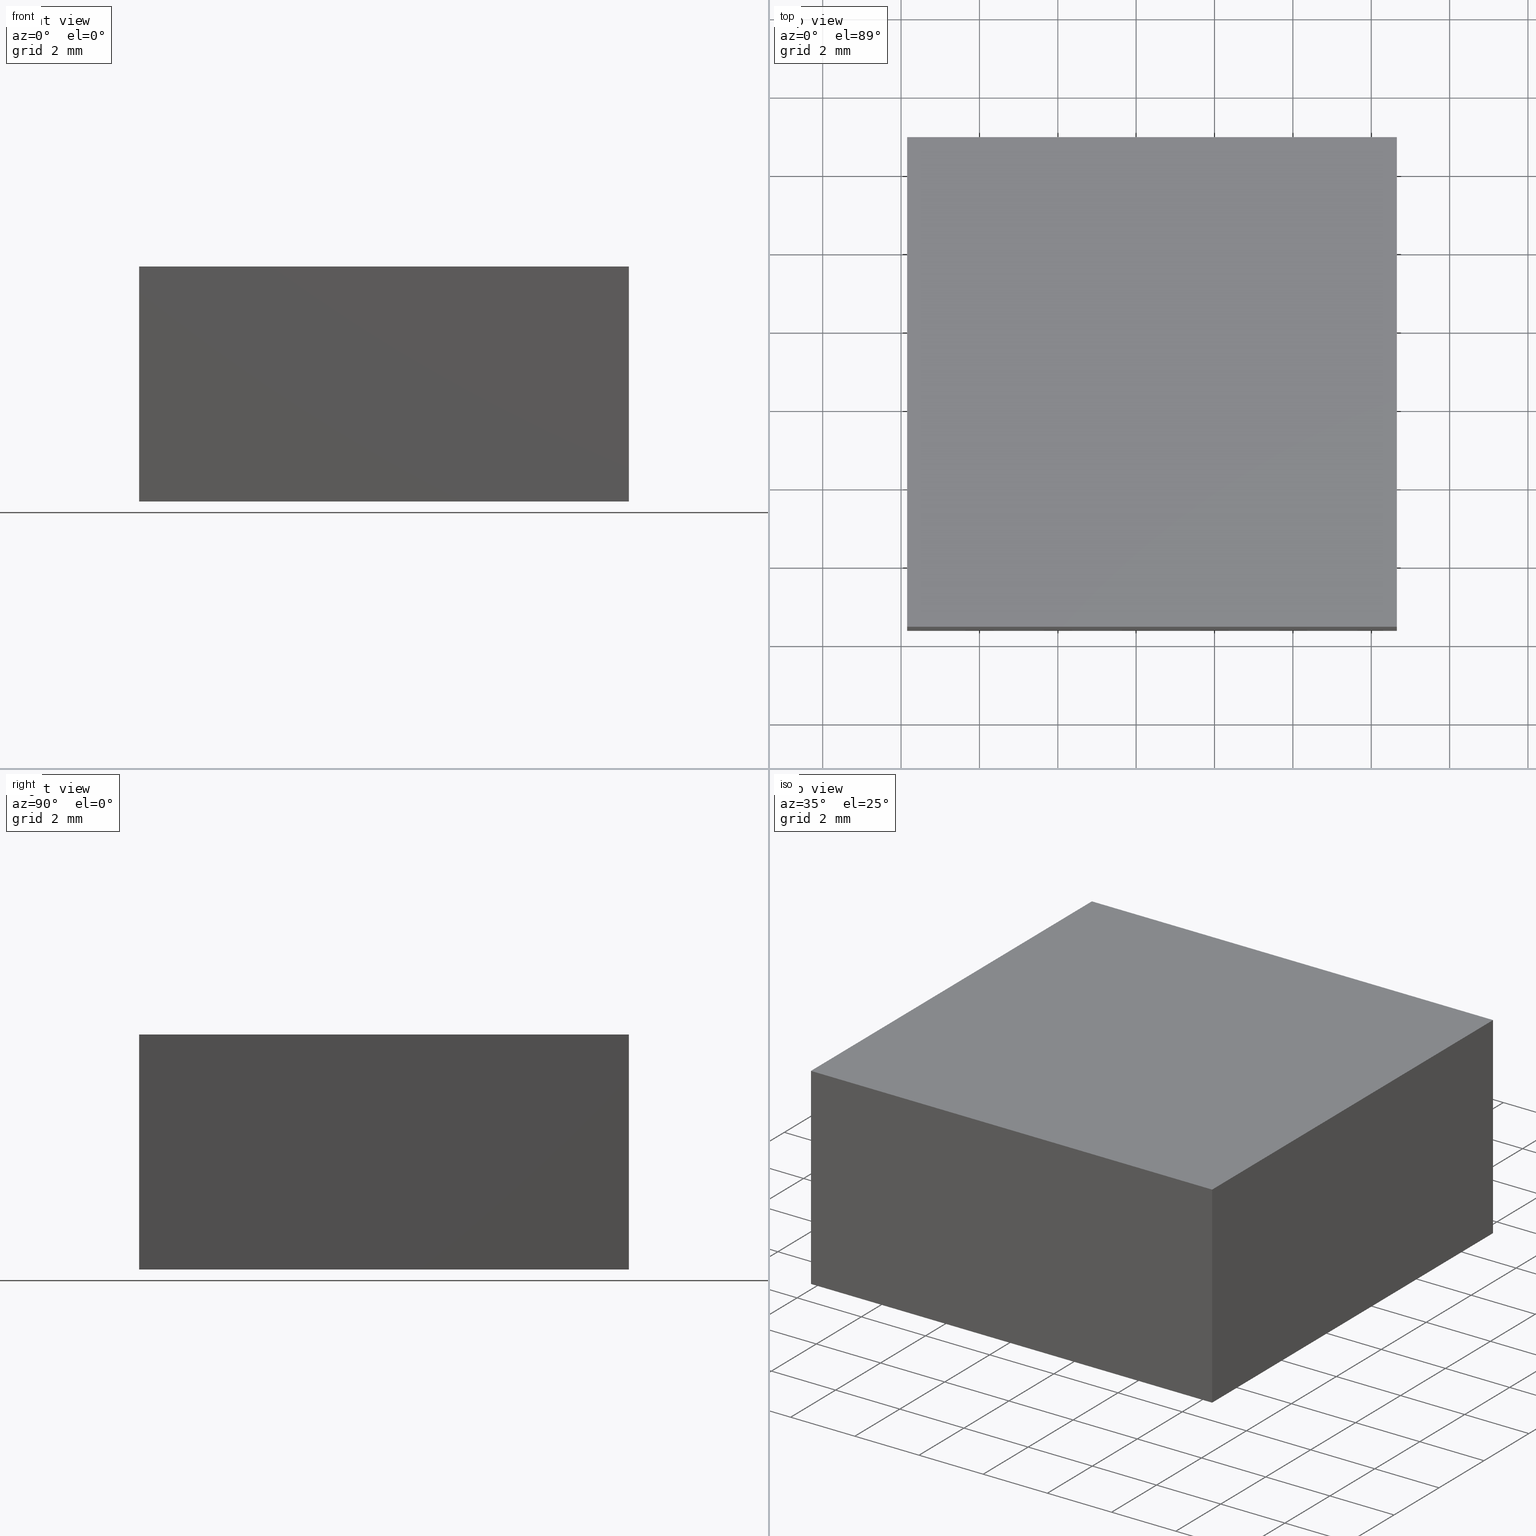
[diagram: canonical four-view strip — front | top / right | iso, engineering-drawing reading convention]
A machine part, canonical four-view strip (front | top / right | iso — engineering-drawing reading convention). The complete STEP part file that produces these views, byte-faithful:
ISO-10303-21;
HEADER;
FILE_DESCRIPTION (( 'STEP AP214' ),
    '1' );
FILE_NAME ('260069.STEP',
    '2019-07-16T03:11:53',
    ( '' ),
    ( '' ),
    'SwSTEP 2.0',
    'SolidWorks 2016',
    '' );
FILE_SCHEMA (( 'AUTOMOTIVE_DESIGN' ));
ENDSEC;

DATA;
#1 = ADVANCED_FACE ( 'NONE', ( #69 ), #163, .F. ) ;
#2 = STYLED_ITEM ( 'NONE', ( #18 ), #32 ) ;
#3 = VECTOR ( 'NONE', #9, 1000.000000000000000 ) ;
#4 = AXIS2_PLACEMENT_3D ( 'NONE', #47, #27, #95 ) ;
#5 = UNCERTAINTY_MEASURE_WITH_UNIT (LENGTH_MEASURE( 1.000000000000000100E-005 ), #183, 'distance_accuracy_value', 'NONE');
#6 = DIRECTION ( 'NONE',  ( -0.0000000000000000000, 1.000000000000000000, -0.0000000000000000000 ) ) ;
#7 = VECTOR ( 'NONE', #153, 1000.000000000000000 ) ;
#8 = ORIENTED_EDGE ( 'NONE', *, *, #63, .T. ) ;
#9 = DIRECTION ( 'NONE',  ( -0.0000000000000000000, -1.000000000000000000, -0.0000000000000000000 ) ) ;
#10 = DIRECTION ( 'NONE',  ( -0.0000000000000000000, -0.0000000000000000000, -1.000000000000000000 ) ) ;
#11 = CARTESIAN_POINT ( 'NONE',  ( 104.1543858644214700, 32.39658967450770900, 6.000000000000000000 ) ) ;
#12 = LINE ( 'NONE', #159, #88 ) ;
#13 = CARTESIAN_POINT ( 'NONE',  ( 0.0000000000000000000, 0.0000000000000000000, 0.0000000000000000000 ) ) ;
#14 = PRODUCT_DEFINITION_SHAPE ( 'NONE', 'NONE',  #192 ) ;
#15 = CARTESIAN_POINT ( 'NONE',  ( 104.1543858644214700, 38.64658967450770900, 6.000000000000000000 ) ) ;
#16 = ORIENTED_EDGE ( 'NONE', *, *, #86, .T. ) ;
#17 = PRESENTATION_LAYER_ASSIGNMENT (  '', '', ( #2 ) ) ;
#18 = PRESENTATION_STYLE_ASSIGNMENT (( #171 ) ) ;
#19 = VECTOR ( 'NONE', #194, 1000.000000000000000 ) ;
#20 = SURFACE_STYLE_FILL_AREA ( #76 ) ;
#21 = VERTEX_POINT ( 'NONE', #57 ) ;
#22 = DIRECTION ( 'NONE',  ( -0.0000000000000000000, -0.0000000000000000000, -1.000000000000000000 ) ) ;
#23 = CARTESIAN_POINT ( 'NONE',  ( 0.0000000000000000000, 0.0000000000000000000, 6.000000000000000000 ) ) ;
#24 = CARTESIAN_POINT ( 'NONE',  ( 116.6543858644214900, 44.89658967450770900, 6.000000000000000000 ) ) ;
#25 = STYLED_ITEM ( 'NONE', ( #151 ), #199 ) ;
#26 = FACE_OUTER_BOUND ( 'NONE', #99, .T. ) ;
#27 = DIRECTION ( 'NONE',  ( 0.0000000000000000000, 0.0000000000000000000, -1.000000000000000000 ) ) ;
#28 = CARTESIAN_POINT ( 'NONE',  ( 104.1543858644214700, 32.39658967450770900, 0.0000000000000000000 ) ) ;
#29 = PLANE ( 'NONE',  #4 ) ;
#30 = LINE ( 'NONE', #105, #58 ) ;
#31 = DIRECTION ( 'NONE',  ( 0.0000000000000000000, 0.0000000000000000000, 1.000000000000000000 ) ) ;
#32 = ADVANCED_BREP_SHAPE_REPRESENTATION ( '260069', ( #199, #98 ), #195 ) ;
#33 = PLANE ( 'NONE',  #91 ) ;
#34 = CLOSED_SHELL ( 'NONE', ( #1, #100, #189, #129, #82, #131 ) ) ;
#35 = AXIS2_PLACEMENT_3D ( 'NONE', #15, #111, #61 ) ;
#36 = ORIENTED_EDGE ( 'NONE', *, *, #83, .F. ) ;
#37 = EDGE_CURVE ( 'NONE', #148, #21, #81, .T. ) ;
#38 = CARTESIAN_POINT ( 'NONE',  ( 116.6543858644214900, 32.39658967450770900, 0.0000000000000000000 ) ) ;
#39 = VECTOR ( 'NONE', #22, 1000.000000000000000 ) ;
#40 = EDGE_CURVE ( 'NONE', #54, #132, #146, .T. ) ;
#41 = CARTESIAN_POINT ( 'NONE',  ( 116.6543858644214900, 32.39658967450770900, 6.000000000000000000 ) ) ;
#42 = DIRECTION ( 'NONE',  ( 0.0000000000000000000, 1.000000000000000000, -0.0000000000000000000 ) ) ;
#43 = CARTESIAN_POINT ( 'NONE',  ( 116.6543858644214900, 32.39658967450770900, 0.0000000000000000000 ) ) ;
#44 = EDGE_LOOP ( 'NONE', ( #168, #67, #116, #120 ) ) ;
#45 = SURFACE_STYLE_USAGE ( .BOTH. , #123 ) ;
#46 = APPLICATION_PROTOCOL_DEFINITION ( 'draft international standard', 'automotive_design', 1998, #141 ) ;
#47 = CARTESIAN_POINT ( 'NONE',  ( 0.0000000000000000000, 0.0000000000000000000, 0.0000000000000000000 ) ) ;
#48 = COLOUR_RGB ( '',1.000000000000000000, 1.000000000000000000, 1.000000000000000000 ) ;
#49 = ORIENTED_EDGE ( 'NONE', *, *, #83, .T. ) ;
#50 = MECHANICAL_DESIGN_GEOMETRIC_PRESENTATION_REPRESENTATION (  '', ( #2 ), #115 ) ;
#51 = EDGE_CURVE ( 'NONE', #64, #132, #144, .T. ) ;
#52 = LINE ( 'NONE', #104, #3 ) ;
#53 = LINE ( 'NONE', #196, #39 ) ;
#54 = VERTEX_POINT ( 'NONE', #89 ) ;
#55 = EDGE_LOOP ( 'NONE', ( #127, #202, #191, #173 ) ) ;
#56 = AXIS2_PLACEMENT_3D ( 'NONE', #23, #103, #107 ) ;
#57 = CARTESIAN_POINT ( 'NONE',  ( 116.6543858644214900, 44.89658967450770900, 6.000000000000000000 ) ) ;
#58 = VECTOR ( 'NONE', #119, 1000.000000000000000 ) ;
#59 = PLANE ( 'NONE',  #56 ) ;
#60 = ORIENTED_EDGE ( 'NONE', *, *, #37, .T. ) ;
#61 = DIRECTION ( 'NONE',  ( 0.0000000000000000000, 0.0000000000000000000, -1.000000000000000000 ) ) ;
#62 = FILL_AREA_STYLE ('',( #198 ) ) ;
#63 = EDGE_CURVE ( 'NONE', #132, #172, #52, .T. ) ;
#64 = VERTEX_POINT ( 'NONE', #177 ) ;
#65 = EDGE_CURVE ( 'NONE', #21, #54, #12, .T. ) ;
#66 = CARTESIAN_POINT ( 'NONE',  ( 104.1543858644214700, 44.89658967450770900, 6.000000000000000000 ) ) ;
#67 = ORIENTED_EDGE ( 'NONE', *, *, #51, .F. ) ;
#68 = FACE_OUTER_BOUND ( 'NONE', #114, .T. ) ;
#69 = FACE_OUTER_BOUND ( 'NONE', #175, .T. ) ;
#70 = CARTESIAN_POINT ( 'NONE',  ( 104.1543858644214700, 44.89658967450770900, 0.0000000000000000000 ) ) ;
#71 = CARTESIAN_POINT ( 'NONE',  ( 104.1543858644214700, 44.89658967450770900, 6.000000000000000000 ) ) ;
#72 = CARTESIAN_POINT ( 'NONE',  ( 104.1543858644214700, 44.89658967450770900, 6.000000000000000000 ) ) ;
#73 = VERTEX_POINT ( 'NONE', #38 ) ;
#74 = DIRECTION ( 'NONE',  ( 0.0000000000000000000, 0.0000000000000000000, 1.000000000000000000 ) ) ;
#75 = PLANE ( 'NONE',  #126 ) ;
#76 = FILL_AREA_STYLE ('',( #150 ) ) ;
#77 = SHAPE_DEFINITION_REPRESENTATION ( #14, #32 ) ;
#78 = VECTOR ( 'NONE', #165, 1000.000000000000000 ) ;
#79 =( NAMED_UNIT ( * ) SI_UNIT ( $, .STERADIAN. ) SOLID_ANGLE_UNIT ( ) );
#80 = PRODUCT_CONTEXT ( 'NONE', #112, 'mechanical' ) ;
#81 = LINE ( 'NONE', #179, #158 ) ;
#82 = ADVANCED_FACE ( 'NONE', ( #26 ), #59, .F. ) ;
#83 = EDGE_CURVE ( 'NONE', #157, #148, #30, .T. ) ;
#84 = LINE ( 'NONE', #71, #78 ) ;
#85 = PRODUCT_DEFINITION_FORMATION_WITH_SPECIFIED_SOURCE ( '�κ�', '', #142, .NOT_KNOWN. ) ;
#86 = EDGE_CURVE ( 'NONE', #157, #172, #161, .T. ) ;
#87 = UNCERTAINTY_MEASURE_WITH_UNIT (LENGTH_MEASURE( 1.000000000000000100E-005 ), #182, 'distance_accuracy_value', 'NONE');
#88 = VECTOR ( 'NONE', #137, 1000.000000000000000 ) ;
#89 = CARTESIAN_POINT ( 'NONE',  ( 116.6543858644214900, 44.89658967450770900, 0.0000000000000000000 ) ) ;
#90 = DIRECTION ( 'NONE',  ( -1.000000000000000000, -0.0000000000000000000, -0.0000000000000000000 ) ) ;
#91 = AXIS2_PLACEMENT_3D ( 'NONE', #66, #169, #167 ) ;
#92 = CARTESIAN_POINT ( 'NONE',  ( 116.6543858644214900, 32.39658967450770900, 6.000000000000000000 ) ) ;
#93 = ORIENTED_EDGE ( 'NONE', *, *, #174, .F. ) ;
#94 =( NAMED_UNIT ( * ) SI_UNIT ( $, .STERADIAN. ) SOLID_ANGLE_UNIT ( ) );
#95 = DIRECTION ( 'NONE',  ( -1.000000000000000000, 0.0000000000000000000, -0.0000000000000000000 ) ) ;
#96 =( NAMED_UNIT ( * ) PLANE_ANGLE_UNIT ( ) SI_UNIT ( $, .RADIAN. ) );
#97 = EDGE_LOOP ( 'NONE', ( #8, #178, #187, #201 ) ) ;
#98 = AXIS2_PLACEMENT_3D ( 'NONE', #13, #31, #124 ) ;
#99 = EDGE_LOOP ( 'NONE', ( #162, #49, #60, #128 ) ) ;
#100 = ADVANCED_FACE ( 'NONE', ( #185 ), #75, .F. ) ;
#101 = ORIENTED_EDGE ( 'NONE', *, *, #63, .F. ) ;
#102 = VECTOR ( 'NONE', #6, 1000.000000000000000 ) ;
#103 = DIRECTION ( 'NONE',  ( 0.0000000000000000000, 0.0000000000000000000, -1.000000000000000000 ) ) ;
#104 = CARTESIAN_POINT ( 'NONE',  ( 104.1543858644214700, 38.64658967450770900, 0.0000000000000000000 ) ) ;
#105 = CARTESIAN_POINT ( 'NONE',  ( 116.6543858644214900, 32.39658967450770900, 6.000000000000000000 ) ) ;
#106 = EDGE_CURVE ( 'NONE', #73, #54, #133, .T. ) ;
#107 = DIRECTION ( 'NONE',  ( -1.000000000000000000, 0.0000000000000000000, -0.0000000000000000000 ) ) ;
#108 = VECTOR ( 'NONE', #90, 1000.000000000000000 ) ;
#109 = PLANE ( 'NONE',  #35 ) ;
#110 = EDGE_CURVE ( 'NONE', #21, #64, #84, .T. ) ;
#111 = DIRECTION ( 'NONE',  ( 1.000000000000000000, 0.0000000000000000000, 0.0000000000000000000 ) ) ;
#112 = APPLICATION_CONTEXT ( 'automotive_design' ) ;
#113 = APPLICATION_PROTOCOL_DEFINITION ( 'draft international standard', 'automotive_design', 1998, #112 ) ;
#114 = EDGE_LOOP ( 'NONE', ( #93, #101, #154, #180 ) ) ;
#115 =( GEOMETRIC_REPRESENTATION_CONTEXT ( 3 ) GLOBAL_UNCERTAINTY_ASSIGNED_CONTEXT ( ( #118 ) ) GLOBAL_UNIT_ASSIGNED_CONTEXT ( ( #184, #96, #79 ) ) REPRESENTATION_CONTEXT ( 'NONE', 'WORKASPACE' ) );
#116 = ORIENTED_EDGE ( 'NONE', *, *, #110, .F. ) ;
#117 = PRODUCT_DEFINITION_CONTEXT ( 'detailed design', #141, 'design' ) ;
#118 = UNCERTAINTY_MEASURE_WITH_UNIT (LENGTH_MEASURE( 1.000000000000000100E-005 ), #184, 'distance_accuracy_value', 'NONE');
#119 = DIRECTION ( 'NONE',  ( 1.000000000000000000, -0.0000000000000000000, -0.0000000000000000000 ) ) ;
#120 = ORIENTED_EDGE ( 'NONE', *, *, #65, .T. ) ;
#121 =( NAMED_UNIT ( * ) PLANE_ANGLE_UNIT ( ) SI_UNIT ( $, .RADIAN. ) );
#122 = LINE ( 'NONE', #43, #193 ) ;
#123 = SURFACE_SIDE_STYLE ('',( #20 ) ) ;
#124 = DIRECTION ( 'NONE',  ( 1.000000000000000000, 0.0000000000000000000, 0.0000000000000000000 ) ) ;
#125 = EDGE_CURVE ( 'NONE', #148, #73, #53, .T. ) ;
#126 = AXIS2_PLACEMENT_3D ( 'NONE', #24, #135, #74 ) ;
#127 = ORIENTED_EDGE ( 'NONE', *, *, #106, .T. ) ;
#128 = ORIENTED_EDGE ( 'NONE', *, *, #110, .T. ) ;
#129 = ADVANCED_FACE ( 'NONE', ( #190 ), #109, .F. ) ;
#130 = ORIENTED_EDGE ( 'NONE', *, *, #174, .T. ) ;
#131 = ADVANCED_FACE ( 'NONE', ( #68 ), #29, .T. ) ;
#132 = VERTEX_POINT ( 'NONE', #181 ) ;
#133 = LINE ( 'NONE', #166, #102 ) ;
#134 = CARTESIAN_POINT ( 'NONE',  ( 104.1543858644214700, 32.39658967450770900, 6.000000000000000000 ) ) ;
#135 = DIRECTION ( 'NONE',  ( -1.000000000000000000, 0.0000000000000000000, 0.0000000000000000000 ) ) ;
#136 = EDGE_CURVE ( 'NONE', #64, #157, #156, .T. ) ;
#137 = DIRECTION ( 'NONE',  ( -0.0000000000000000000, -0.0000000000000000000, -1.000000000000000000 ) ) ;
#138 = CARTESIAN_POINT ( 'NONE',  ( 104.1543858644214700, 32.39658967450770900, 6.000000000000000000 ) ) ;
#139 = PRESENTATION_LAYER_ASSIGNMENT (  '', '', ( #25 ) ) ;
#140 =( NAMED_UNIT ( * ) PLANE_ANGLE_UNIT ( ) SI_UNIT ( $, .RADIAN. ) );
#141 = APPLICATION_CONTEXT ( 'automotive_design' ) ;
#142 = PRODUCT ( '260069', '260069', '', ( #80 ) ) ;
#143 = ORIENTED_EDGE ( 'NONE', *, *, #125, .F. ) ;
#144 = LINE ( 'NONE', #72, #19 ) ;
#145 = PRODUCT_RELATED_PRODUCT_CATEGORY ( 'part', '', ( #142 ) ) ;
#146 = LINE ( 'NONE', #70, #108 ) ;
#147 = DIRECTION ( 'NONE',  ( -0.0000000000000000000, 1.000000000000000000, -0.0000000000000000000 ) ) ;
#148 = VERTEX_POINT ( 'NONE', #92 ) ;
#149 = AXIS2_PLACEMENT_3D ( 'NONE', #41, #42, #160 ) ;
#150 = FILL_AREA_STYLE_COLOUR ( '', #200 ) ;
#151 = PRESENTATION_STYLE_ASSIGNMENT (( #45 ) ) ;
#152 =( NAMED_UNIT ( * ) SI_UNIT ( $, .STERADIAN. ) SOLID_ANGLE_UNIT ( ) );
#153 = DIRECTION ( 'NONE',  ( -0.0000000000000000000, -1.000000000000000000, -0.0000000000000000000 ) ) ;
#154 = ORIENTED_EDGE ( 'NONE', *, *, #40, .F. ) ;
#155 = VECTOR ( 'NONE', #10, 1000.000000000000000 ) ;
#156 = LINE ( 'NONE', #138, #7 ) ;
#157 = VERTEX_POINT ( 'NONE', #11 ) ;
#158 = VECTOR ( 'NONE', #147, 1000.000000000000000 ) ;
#159 = CARTESIAN_POINT ( 'NONE',  ( 116.6543858644214900, 44.89658967450770900, 6.000000000000000000 ) ) ;
#160 = DIRECTION ( 'NONE',  ( 0.0000000000000000000, 0.0000000000000000000, 1.000000000000000000 ) ) ;
#161 = LINE ( 'NONE', #134, #155 ) ;
#162 = ORIENTED_EDGE ( 'NONE', *, *, #136, .T. ) ;
#163 = PLANE ( 'NONE',  #149 ) ;
#164 = MECHANICAL_DESIGN_GEOMETRIC_PRESENTATION_REPRESENTATION (  '', ( #25 ), #186 ) ;
#165 = DIRECTION ( 'NONE',  ( -1.000000000000000000, -0.0000000000000000000, -0.0000000000000000000 ) ) ;
#166 = CARTESIAN_POINT ( 'NONE',  ( 116.6543858644214900, 44.89658967450770900, 0.0000000000000000000 ) ) ;
#167 = DIRECTION ( 'NONE',  ( 0.0000000000000000000, -0.0000000000000000000, -1.000000000000000000 ) ) ;
#168 = ORIENTED_EDGE ( 'NONE', *, *, #40, .T. ) ;
#169 = DIRECTION ( 'NONE',  ( 0.0000000000000000000, -1.000000000000000000, 0.0000000000000000000 ) ) ;
#170 = SURFACE_SIDE_STYLE ('',( #176 ) ) ;
#171 = SURFACE_STYLE_USAGE ( .BOTH. , #170 ) ;
#172 = VERTEX_POINT ( 'NONE', #28 ) ;
#173 = ORIENTED_EDGE ( 'NONE', *, *, #125, .T. ) ;
#174 = EDGE_CURVE ( 'NONE', #172, #73, #122, .T. ) ;
#175 = EDGE_LOOP ( 'NONE', ( #130, #143, #36, #16 ) ) ;
#176 = SURFACE_STYLE_FILL_AREA ( #62 ) ;
#177 = CARTESIAN_POINT ( 'NONE',  ( 104.1543858644214700, 44.89658967450770900, 6.000000000000000000 ) ) ;
#178 = ORIENTED_EDGE ( 'NONE', *, *, #86, .F. ) ;
#179 = CARTESIAN_POINT ( 'NONE',  ( 116.6543858644214900, 44.89658967450770900, 6.000000000000000000 ) ) ;
#180 = ORIENTED_EDGE ( 'NONE', *, *, #106, .F. ) ;
#181 = CARTESIAN_POINT ( 'NONE',  ( 104.1543858644214700, 44.89658967450770900, 0.0000000000000000000 ) ) ;
#182 =( LENGTH_UNIT ( ) NAMED_UNIT ( * ) SI_UNIT ( .MILLI., .METRE. ) );
#183 =( LENGTH_UNIT ( ) NAMED_UNIT ( * ) SI_UNIT ( .MILLI., .METRE. ) );
#184 =( LENGTH_UNIT ( ) NAMED_UNIT ( * ) SI_UNIT ( .MILLI., .METRE. ) );
#185 = FACE_OUTER_BOUND ( 'NONE', #55, .T. ) ;
#186 =( GEOMETRIC_REPRESENTATION_CONTEXT ( 3 ) GLOBAL_UNCERTAINTY_ASSIGNED_CONTEXT ( ( #87 ) ) GLOBAL_UNIT_ASSIGNED_CONTEXT ( ( #182, #121, #94 ) ) REPRESENTATION_CONTEXT ( 'NONE', 'WORKASPACE' ) );
#187 = ORIENTED_EDGE ( 'NONE', *, *, #136, .F. ) ;
#188 = FACE_OUTER_BOUND ( 'NONE', #44, .T. ) ;
#189 = ADVANCED_FACE ( 'NONE', ( #188 ), #33, .F. ) ;
#190 = FACE_OUTER_BOUND ( 'NONE', #97, .T. ) ;
#191 = ORIENTED_EDGE ( 'NONE', *, *, #37, .F. ) ;
#192 = PRODUCT_DEFINITION ( 'δ֪', '', #85, #117 ) ;
#193 = VECTOR ( 'NONE', #197, 1000.000000000000000 ) ;
#194 = DIRECTION ( 'NONE',  ( -0.0000000000000000000, -0.0000000000000000000, -1.000000000000000000 ) ) ;
#195 =( GEOMETRIC_REPRESENTATION_CONTEXT ( 3 ) GLOBAL_UNCERTAINTY_ASSIGNED_CONTEXT ( ( #5 ) ) GLOBAL_UNIT_ASSIGNED_CONTEXT ( ( #183, #140, #152 ) ) REPRESENTATION_CONTEXT ( 'NONE', 'WORKASPACE' ) );
#196 = CARTESIAN_POINT ( 'NONE',  ( 116.6543858644214900, 32.39658967450770900, 6.000000000000000000 ) ) ;
#197 = DIRECTION ( 'NONE',  ( 1.000000000000000000, -0.0000000000000000000, -0.0000000000000000000 ) ) ;
#198 = FILL_AREA_STYLE_COLOUR ( '', #48 ) ;
#199 = MANIFOLD_SOLID_BREP ( '͹̨-����1', #34 ) ;
#200 = COLOUR_RGB ( '',1.000000000000000000, 1.000000000000000000, 1.000000000000000000 ) ;
#201 = ORIENTED_EDGE ( 'NONE', *, *, #51, .T. ) ;
#202 = ORIENTED_EDGE ( 'NONE', *, *, #65, .F. ) ;
ENDSEC;
END-ISO-10303-21;
